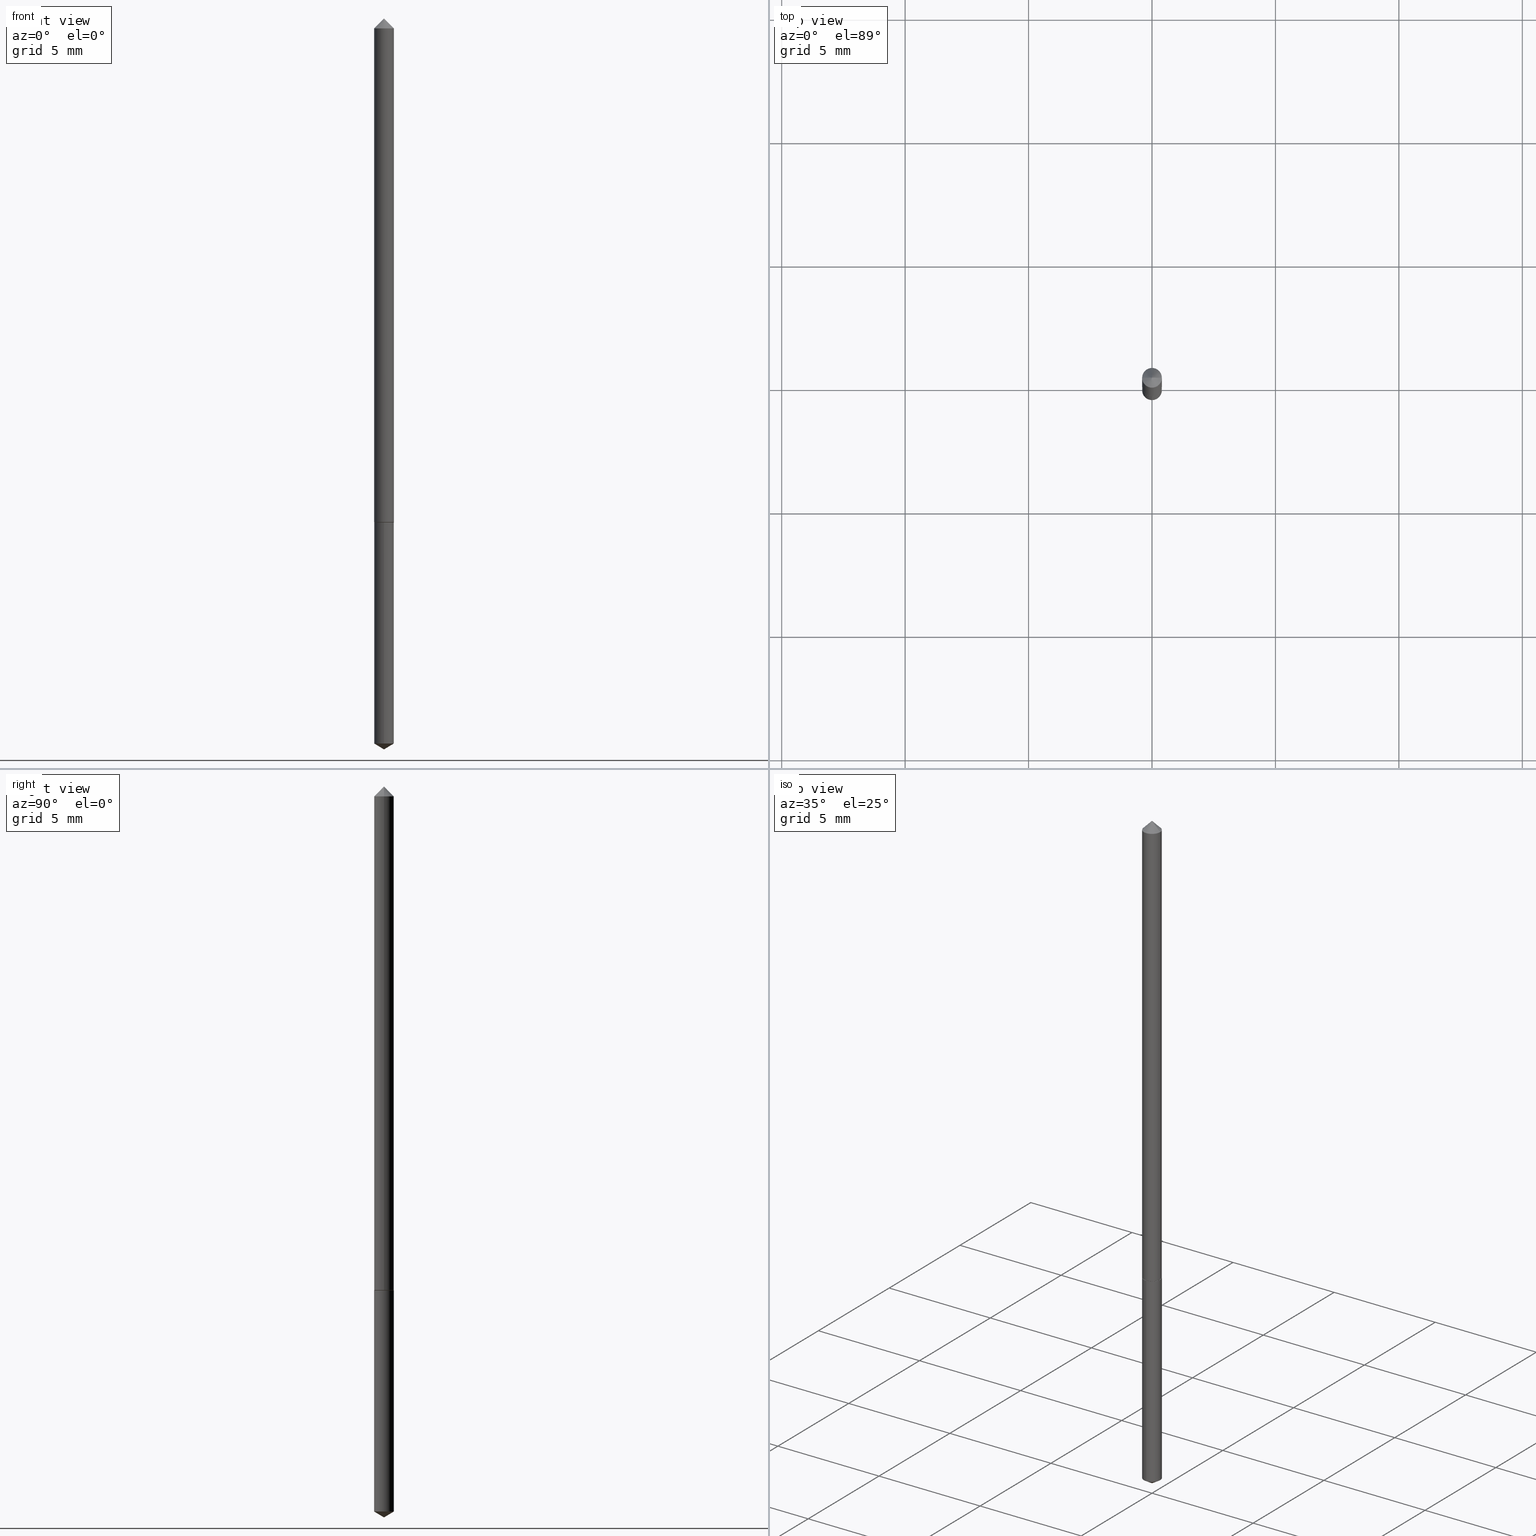
[diagram: canonical four-view strip — front | top / right | iso, engineering-drawing reading convention]
A machine part, canonical four-view strip (front | top / right | iso — engineering-drawing reading convention). The complete STEP part file that produces these views, byte-faithful:
ISO-10303-21;
HEADER;
FILE_DESCRIPTION (( 'STEP AP203' ),
    '1' );
FILE_NAME ('61003.STEP',
    '2024-04-23T02:09:39',
    ( '' ),
    ( '' ),
    'SwSTEP 2.0',
    'SolidWorks 2023',
    '' );
FILE_SCHEMA (( 'CONFIG_CONTROL_DESIGN' ));
ENDSEC;

DATA;
#1 = DIRECTION ( 'NONE',  ( -2.445468806185136597E-29, 3.491481338843145583E-15, 1.000000000000000000 ) ) ;
#2 = VECTOR ( 'NONE', #111, 39.37007874015748143 ) ;
#3 = APPROVAL_STATUS ( 'not_yet_approved' ) ;
#4 = DIRECTION ( 'NONE',  ( 1.000000000000000000, -6.982962677686256455E-15, 0.000000000000000000 ) ) ;
#5 =( NAMED_UNIT ( * ) SI_UNIT ( $, .STERADIAN. ) SOLID_ANGLE_UNIT ( ) );
#6 = CLOSED_SHELL ( 'NONE', ( #240, #54, #122, #280, #63, #265, #103 ) ) ;
#7 = MECHANICAL_CONTEXT ( 'NONE', #248, 'mechanical' ) ;
#8 = LOCAL_TIME ( 22, 9, 39.00000000000000000, #77 ) ;
#9 = DIRECTION ( 'NONE',  ( -6.982962677686265922E-15, -1.000000000000000000, 0.000000000000000000 ) ) ;
#10 = FACE_OUTER_BOUND ( 'NONE', #301, .T. ) ;
#11 = ORIENTED_EDGE ( 'NONE', *, *, #190, .F. ) ;
#12 = DIRECTION ( 'NONE',  ( 1.000000000000000000, -6.982962677686273810E-15, 0.000000000000000000 ) ) ;
#13 = LINE ( 'NONE', #140, #227 ) ;
#14 = EDGE_LOOP ( 'NONE', ( #325, #134 ) ) ;
#15 = CARTESIAN_POINT ( 'NONE',  ( 0.01575000000000000358, -2.190904540124077205E-16, -0.03125000000000019429 ) ) ;
#16 = ORIENTED_EDGE ( 'NONE', *, *, #125, .T. ) ;
#17 = DIRECTION ( 'NONE',  ( -1.000000000000000000, 6.982962677686266711E-15, 0.000000000000000000 ) ) ;
#18 = ORIENTED_EDGE ( 'NONE', *, *, #133, .T. ) ;
#19 = AXIS2_PLACEMENT_3D ( 'NONE', #334, #286, #91 ) ;
#20 = EDGE_CURVE ( 'NONE', #229, #84, #152, .T. ) ;
#21 = CARTESIAN_POINT ( 'NONE',  ( 3.864993808106007472E-31, -5.305083262954399380E-17, -0.01550000000000009703 ) ) ;
#22 = FACE_OUTER_BOUND ( 'NONE', #313, .T. ) ;
#23 = ORIENTED_EDGE ( 'NONE', *, *, #113, .T. ) ;
#24 = ADVANCED_FACE ( 'NONE', ( #279 ), #196, .T. ) ;
#25 = ORIENTED_EDGE ( 'NONE', *, *, #311, .T. ) ;
#26 = AXIS2_PLACEMENT_3D ( 'NONE', #230, #28, #256 ) ;
#27 = CIRCLE ( 'NONE', #288, 0.01575000000000000358 ) ;
#28 = DIRECTION ( 'NONE',  ( -2.445331127242013945E-29, 3.491678502925895988E-15, 1.000000000000000000 ) ) ;
#29 = FACE_OUTER_BOUND ( 'NONE', #357, .T. ) ;
#30 = PERSON_AND_ORGANIZATION ( #41, #171 ) ;
#31 = CC_DESIGN_PERSON_AND_ORGANIZATION_ASSIGNMENT ( #219, #161, ( #123 ) ) ;
#32 = VECTOR ( 'NONE', #277, 39.37007874015748143 ) ;
#33 = CARTESIAN_POINT ( 'NONE',  ( 2.888180594385542696E-29, -4.124021479805775382E-15, -1.181100000000000039 ) ) ;
#34 = DIRECTION ( 'NONE',  ( 0.000000000000000000, 0.000000000000000000, 1.000000000000000000 ) ) ;
#35 = DIRECTION ( 'NONE',  ( 1.000000000000000000, -6.982962677686267499E-15, 0.000000000000000000 ) ) ;
#36 = PRODUCT ( '61003', '61003', '', ( #7 ) ) ;
#37 = DIRECTION ( 'NONE',  ( -2.445331127242013945E-29, 3.491678502925895988E-15, 1.000000000000000000 ) ) ;
#38 = APPROVAL_DATE_TIME ( #101, #321 ) ;
#39 = CIRCLE ( 'NONE', #168, 0.01575000000000000011 ) ;
#40 = AXIS2_PLACEMENT_3D ( 'NONE', #72, #166, #293 ) ;
#41 = PERSON ( 'UNSPECIFIED', 'UNSPECIFIED', 'UNSPECIFIED', ('UNSPECIFIED'), ('UNSPECIFIED'), ('UNSPECIFIED') ) ;
#42 = APPROVAL_DATE_TIME ( #108, #287 ) ;
#43 = DIRECTION ( 'NONE',  ( 0.7071067811865453523, -7.319954787623248157E-15, -0.7071067811865496822 ) ) ;
#44 = ORIENTED_EDGE ( 'NONE', *, *, #342, .T. ) ;
#45 = DIRECTION ( 'NONE',  ( 2.445468806185136597E-29, -3.491481338843145583E-15, -1.000000000000000000 ) ) ;
#46 = CARTESIAN_POINT ( 'NONE',  ( -0.01575000000000000358, -1.371358078891821821E-15, -0.03125000000000019429 ) ) ;
#47 = ORIENTED_EDGE ( 'NONE', *, *, #311, .F. ) ;
#48 = DIRECTION ( 'NONE',  ( -6.982962677686265922E-15, -1.000000000000000000, 0.000000000000000000 ) ) ;
#49 = PERSON_AND_ORGANIZATION ( #41, #171 ) ;
#50 = ORIENTED_EDGE ( 'NONE', *, *, #295, .F. ) ;
#51 = AXIS2_PLACEMENT_3D ( 'NONE', #150, #255, #208 ) ;
#52 = APPROVAL_STATUS ( 'not_yet_approved' ) ;
#53 = EDGE_CURVE ( 'NONE', #350, #75, #114, .T. ) ;
#54 = ADVANCED_FACE ( 'NONE', ( #257 ), #361, .T. ) ;
#55 = DIRECTION ( 'NONE',  ( -2.445331127242013945E-29, 3.491678502925895988E-15, 1.000000000000000000 ) ) ;
#56 = CARTESIAN_POINT ( 'NONE',  ( -1.099816621735386641E-16, -0.01575000000000285894, -0.8189000000000000723 ) ) ;
#57 = MANIFOLD_SOLID_BREP ( 'Body-Move/Copy2[1]', #204 ) ;
#58 = EDGE_CURVE ( 'NONE', #229, #223, #39, .T. ) ;
#59 = ORIENTED_EDGE ( 'NONE', *, *, #295, .T. ) ;
#60 = EDGE_CURVE ( 'NONE', #276, #229, #124, .T. ) ;
#61 = VERTEX_POINT ( 'NONE', #210 ) ;
#62 = AXIS2_PLACEMENT_3D ( 'NONE', #146, #253, #201 ) ;
#63 = ADVANCED_FACE ( 'NONE', ( #172 ), #216, .T. ) ;
#64 = DIRECTION ( 'NONE',  ( 6.090539988449815512E-15, 0.8571673007021189949, 0.5150380749100429423 ) ) ;
#65 = DATE_AND_TIME ( #128, #207 ) ;
#66 = CARTESIAN_POINT ( 'NONE',  ( 2.002594405385008597E-29, -2.859174068378652141E-15, -0.8189000000000000723 ) ) ;
#67 = CARTESIAN_POINT ( 'NONE',  ( 0.01525000000000006212, -2.965664249213367803E-15, -0.8189000000000000723 ) ) ;
#68 = APPLICATION_PROTOCOL_DEFINITION ( 'international standard', 'config_control_design', 1994, #79 ) ;
#69 = DIRECTION ( 'NONE',  ( 2.445331127242013665E-29, -3.491678502925895988E-15, -1.000000000000000000 ) ) ;
#70 = DIRECTION ( 'NONE',  ( -2.445468806185136877E-29, 3.491481338843145188E-15, 1.000000000000000000 ) ) ;
#71 = PERSON_AND_ORGANIZATION ( #41, #171 ) ;
#72 = CARTESIAN_POINT ( 'NONE',  ( -9.338458568560408238E-28, 1.333437975733693061E-13, 38.18897874015748073 ) ) ;
#73 = AXIS2_PLACEMENT_3D ( 'NONE', #158, #37, #314 ) ;
#74 = FACE_OUTER_BOUND ( 'NONE', #144, .T. ) ;
#75 = VERTEX_POINT ( 'NONE', #206 ) ;
#76 = CARTESIAN_POINT ( 'NONE',  ( 2.002594405385008597E-29, -2.859174068378652141E-15, -0.8189000000000000723 ) ) ;
#77 = COORDINATED_UNIVERSAL_TIME_OFFSET ( 5, 0, .BEHIND. ) ;
#78 = CC_DESIGN_PERSON_AND_ORGANIZATION_ASSIGNMENT ( #71, #289, ( #36 ) ) ;
#79 = APPLICATION_CONTEXT ( 'configuration controlled 3d designs of mechanical parts and assemblies' ) ;
#80 = CARTESIAN_POINT ( 'NONE',  ( -0.01575000000000000358, 8.728703347097452934E-19, -0.03125000000000019429 ) ) ;
#81 = ORIENTED_EDGE ( 'NONE', *, *, #20, .T. ) ;
#82 =( NAMED_UNIT ( * ) PLANE_ANGLE_UNIT ( ) SI_UNIT ( $, .RADIAN. ) );
#83 = CALENDAR_DATE ( 2024, 22, 4 ) ;
#84 = VERTEX_POINT ( 'NONE', #254 ) ;
#85 = APPROVAL_PERSON_ORGANIZATION ( #130, #321, #341 ) ;
#86 = COORDINATED_UNIVERSAL_TIME_OFFSET ( 5, 0, .BEHIND. ) ;
#87 = DIRECTION ( 'NONE',  ( -2.445468806185136597E-29, 3.491481338843145583E-15, 1.000000000000000000 ) ) ;
#88 = DIRECTION ( 'NONE',  ( 1.000000000000000000, -6.982962677686256455E-15, 0.000000000000000000 ) ) ;
#89 = CARTESIAN_POINT ( 'NONE',  ( 0.000000000000000000, 0.000000000000000000, 0.000000000000000000 ) ) ;
#90 = VECTOR ( 'NONE', #70, 39.37007874015748143 ) ;
#91 = DIRECTION ( 'NONE',  ( -6.982962677686265922E-15, -1.000000000000000000, 0.000000000000000000 ) ) ;
#92 = CARTESIAN_POINT ( 'NONE',  ( 2.888180594385542696E-29, -4.124021479805775382E-15, -1.181100000000000039 ) ) ;
#93 = PLANE ( 'NONE',  #347 ) ;
#94 = ORIENTED_EDGE ( 'NONE', *, *, #190, .T. ) ;
#95 = CYLINDRICAL_SURFACE ( 'NONE', #19, 0.01575000000000000011 ) ;
#96 = CC_DESIGN_APPROVAL ( #246, ( #145 ) ) ;
#97 = DIRECTION ( 'NONE',  ( 0.7071067811865474617, -2.468850131082256666E-15, 0.7071067811865474617 ) ) ;
#98 = PRODUCT_RELATED_PRODUCT_CATEGORY ( 'detail', '', ( #36 ) ) ;
#99 = LINE ( 'NONE', #214, #197 ) ;
#100 = CARTESIAN_POINT ( 'NONE',  ( 0.01575000000000005215, -1.099816621735590636E-16, 7.679978421878623957E-31 ) ) ;
#101 = DATE_AND_TIME ( #291, #139 ) ;
#102 = CARTESIAN_POINT ( 'NONE',  ( 7.642090019328599159E-31, -1.091087918388489774E-16, -0.03125000000000019429 ) ) ;
#103 = ADVANCED_FACE ( 'NONE', ( #22 ), #362, .T. ) ;
#104 = PERSON_AND_ORGANIZATION_ROLE ( 'creator' ) ;
#105 = LENGTH_MEASURE_WITH_UNIT ( LENGTH_MEASURE( 0.02539999999999999897 ), #263 );
#106 = AXIS2_PLACEMENT_3D ( 'NONE', #66, #262, #4 ) ;
#107 = SHAPE_DEFINITION_REPRESENTATION ( #182, #236 ) ;
#108 = DATE_AND_TIME ( #273, #285 ) ;
#109 = DIRECTION ( 'NONE',  ( -2.445468806185136597E-29, 3.491481338843145583E-15, 1.000000000000000000 ) ) ;
#110 = ORIENTED_EDGE ( 'NONE', *, *, #184, .T. ) ;
#111 = DIRECTION ( 'NONE',  ( -0.7071067811865453523, 2.468850131082234184E-15, -0.7071067811865496822 ) ) ;
#112 = ORIENTED_EDGE ( 'NONE', *, *, #275, .F. ) ;
#113 = EDGE_CURVE ( 'NONE', #61, #170, #283, .T. ) ;
#114 = CIRCLE ( 'NONE', #338, 0.01525000000000006212 ) ;
#115 = AXIS2_PLACEMENT_3D ( 'NONE', #203, #45, #17 ) ;
#116 = ORIENTED_EDGE ( 'NONE', *, *, #173, .F. ) ;
#117 = EDGE_LOOP ( 'NONE', ( #221, #25, #141 ) ) ;
#118 = DIMENSIONAL_EXPONENTS ( 1.000000000000000000, 0.000000000000000000, 0.000000000000000000, 0.000000000000000000, 0.000000000000000000, 0.000000000000000000, 0.000000000000000000 ) ;
#119 = ORIENTED_EDGE ( 'NONE', *, *, #20, .F. ) ;
#120 = DIRECTION ( 'NONE',  ( 1.000000000000000000, -6.982962677686266711E-15, 4.876176775795935793E-29 ) ) ;
#121 = VECTOR ( 'NONE', #300, 39.37007874015748143 ) ;
#122 = ADVANCED_FACE ( 'NONE', ( #356 ), #331, .T. ) ;
#123 = PRODUCT_DEFINITION_FORMATION_WITH_SPECIFIED_SOURCE ( 'ANY', '', #36, .NOT_KNOWN. ) ;
#124 = LINE ( 'NONE', #92, #153 ) ;
#125 = EDGE_CURVE ( 'NONE', #247, #84, #191, .T. ) ;
#126 = CC_DESIGN_PERSON_AND_ORGANIZATION_ASSIGNMENT ( #307, #104, ( #145 ) ) ;
#127 = CARTESIAN_POINT ( 'NONE',  ( 2.001371670981915796E-29, -2.857428327709230637E-15, -0.8184000000000001274 ) ) ;
#128 = CALENDAR_DATE ( 2024, 22, 4 ) ;
#129 = COORDINATED_UNIVERSAL_TIME_OFFSET ( 5, 0, .BEHIND. ) ;
#130 = PERSON_AND_ORGANIZATION ( #41, #171 ) ;
#131 = CONICAL_SURFACE ( 'NONE', #115, 0.01575000000000000358, 0.7853981633974452814 ) ;
#132 = DATE_AND_TIME ( #157, #163 ) ;
#133 = EDGE_CURVE ( 'NONE', #223, #247, #249, .T. ) ;
#134 = ORIENTED_EDGE ( 'NONE', *, *, #200, .F. ) ;
#135 = DIRECTION ( 'NONE',  ( -2.445468806185136597E-29, 3.491481338843145583E-15, 1.000000000000000000 ) ) ;
#136 = ORIENTED_EDGE ( 'NONE', *, *, #133, .F. ) ;
#137 = CARTESIAN_POINT ( 'NONE',  ( -0.01575000000000009726, -2.745517846827014167E-15, -0.8184000000000001274 ) ) ;
#138 = CIRCLE ( 'NONE', #212, 0.01575000000000000358 ) ;
#139 = LOCAL_TIME ( 22, 9, 39.00000000000000000, #129 ) ;
#140 = CARTESIAN_POINT ( 'NONE',  ( 0.01575000000000000358, -2.171616353037506096E-16, -0.03125000000000019429 ) ) ;
#141 = ORIENTED_EDGE ( 'NONE', *, *, #58, .F. ) ;
#142 = CARTESIAN_POINT ( 'NONE',  ( -1.099816621735300853E-16, -0.01575000000000409753, -1.171636445250316072 ) ) ;
#143 = ORIENTED_EDGE ( 'NONE', *, *, #337, .F. ) ;
#144 = EDGE_LOOP ( 'NONE', ( #296, #16 ) ) ;
#145 = PRODUCT_DEFINITION ( 'UNKNOWN', '', #123, #185 ) ;
#146 = CARTESIAN_POINT ( 'NONE',  ( 2.002594405385008597E-29, -2.859174068378652141E-15, -0.8189000000000000723 ) ) ;
#147 = DIRECTION ( 'NONE',  ( -5.985567269335977567E-15, -0.8571673007021154422, 0.5150380749100489375 ) ) ;
#148 = CC_DESIGN_APPROVAL ( #321, ( #123 ) ) ;
#149 = DIRECTION ( 'NONE',  ( -2.445468806185136597E-29, 3.491481338843145583E-15, 1.000000000000000000 ) ) ;
#150 = CARTESIAN_POINT ( 'NONE',  ( 7.642090019328599159E-31, -1.091087918388489774E-16, -0.03125000000000019429 ) ) ;
#151 = VERTEX_POINT ( 'NONE', #21 ) ;
#152 = LINE ( 'NONE', #56, #121 ) ;
#153 = VECTOR ( 'NONE', #147, 39.37007874015748143 ) ;
#154 = DIRECTION ( 'NONE',  ( -2.445468806185136597E-29, 3.491481338843145583E-15, 1.000000000000000000 ) ) ;
#155 = LINE ( 'NONE', #100, #90 ) ;
#156 = AXIS2_PLACEMENT_3D ( 'NONE', #159, #69, #164 ) ;
#157 = CALENDAR_DATE ( 2024, 22, 4 ) ;
#158 = CARTESIAN_POINT ( 'NONE',  ( 2.002594405385008597E-29, -2.859174068378652141E-15, -0.8189000000000000723 ) ) ;
#159 = CARTESIAN_POINT ( 'NONE',  ( 2.002594405385008597E-29, -2.859174068378652141E-15, -0.8189000000000000723 ) ) ;
#160 = CARTESIAN_POINT ( 'NONE',  ( 7.642090019328599159E-31, -1.091087918388489774E-16, -0.03125000000000019429 ) ) ;
#161 = PERSON_AND_ORGANIZATION_ROLE ( 'creator' ) ;
#162 = CIRCLE ( 'NONE', #305, 0.01575000000000009726 ) ;
#163 = LOCAL_TIME ( 22, 9, 39.00000000000000000, #336 ) ;
#164 = DIRECTION ( 'NONE',  ( 6.982962677686265922E-15, 1.000000000000000000, -3.491678502925895988E-15 ) ) ;
#165 = ORIENTED_EDGE ( 'NONE', *, *, #359, .F. ) ;
#166 = DIRECTION ( 'NONE',  ( -2.445331127242013945E-29, 3.491678502925895988E-15, 1.000000000000000000 ) ) ;
#167 = ORIENTED_EDGE ( 'NONE', *, *, #340, .T. ) ;
#168 = AXIS2_PLACEMENT_3D ( 'NONE', #232, #55, #328 ) ;
#169 = ADVANCED_FACE ( 'NONE', ( #272 ), #351, .T. ) ;
#170 = VERTEX_POINT ( 'NONE', #137 ) ;
#171 = ORGANIZATION ( 'UNSPECIFIED', 'UNSPECIFIED', '' ) ;
#172 = FACE_OUTER_BOUND ( 'NONE', #268, .T. ) ;
#173 = EDGE_CURVE ( 'NONE', #151, #250, #316, .T. ) ;
#174 = ORIENTED_EDGE ( 'NONE', *, *, #258, .F. ) ;
#175 = VERTEX_POINT ( 'NONE', #15 ) ;
#176 = EDGE_CURVE ( 'NONE', #170, #250, #297, .T. ) ;
#177 = DIRECTION ( 'NONE',  ( -2.445468806185136597E-29, 3.491481338843145583E-15, 1.000000000000000000 ) ) ;
#178 = AXIS2_PLACEMENT_3D ( 'NONE', #302, #87, #317 ) ;
#179 = SECURITY_CLASSIFICATION ( '', '', #274 ) ;
#180 = DATE_TIME_ROLE ( 'creation_date' ) ;
#181 = CARTESIAN_POINT ( 'NONE',  ( 1.119104808822444749E-16, 0.01574999999999714129, -0.8189000000000000723 ) ) ;
#182 = PRODUCT_DEFINITION_SHAPE ( 'NONE', 'NONE',  #145 ) ;
#183 = VECTOR ( 'NONE', #358, 39.37007874015748143 ) ;
#184 = EDGE_CURVE ( 'NONE', #223, #229, #244, .T. ) ;
#185 = DESIGN_CONTEXT ( 'detailed design', #79, 'design' ) ;
#186 = APPROVAL_DATE_TIME ( #132, #246 ) ;
#187 = MANIFOLD_SOLID_BREP ( 'Body-Move/Copy2[2]', #6 ) ;
#188 = DIRECTION ( 'NONE',  ( -2.445468806185136597E-29, 3.491481338843145583E-15, 1.000000000000000000 ) ) ;
#189 = PLANE ( 'NONE',  #156 ) ;
#190 = EDGE_CURVE ( 'NONE', #75, #170, #99, .T. ) ;
#191 = CIRCLE ( 'NONE', #62, 0.01575000000000000011 ) ;
#192 = ORIENTED_EDGE ( 'NONE', *, *, #342, .F. ) ;
#193 = DIRECTION ( 'NONE',  ( -2.445331127242013945E-29, 3.491678502925895988E-15, 1.000000000000000000 ) ) ;
#194 = ORIENTED_EDGE ( 'NONE', *, *, #275, .T. ) ;
#195 = AXIS2_PLACEMENT_3D ( 'NONE', #89, #177, #120 ) ;
#196 = CONICAL_SURFACE ( 'NONE', #26, 65.52281426576983847, 1.029744258676664082 ) ;
#197 = VECTOR ( 'NONE', #308, 39.37007874015748854 ) ;
#198 = APPROVAL_ROLE ( '' ) ;
#199 = EDGE_LOOP ( 'NONE', ( #224, #94, #202, #50 ) ) ;
#200 = EDGE_CURVE ( 'NONE', #75, #350, #319, .T. ) ;
#201 = DIRECTION ( 'NONE',  ( -6.982962677686265922E-15, -1.000000000000000000, 0.000000000000000000 ) ) ;
#202 = ORIENTED_EDGE ( 'NONE', *, *, #113, .F. ) ;
#203 = CARTESIAN_POINT ( 'NONE',  ( 7.642090019328599159E-31, -1.091087918388489774E-16, -0.03125000000000019429 ) ) ;
#204 = CLOSED_SHELL ( 'NONE', ( #169, #352, #24, #269, #251 ) ) ;
#205 = VECTOR ( 'NONE', #97, 39.37007874015748854 ) ;
#206 = CARTESIAN_POINT ( 'NONE',  ( -0.01525000000000006212, -2.748167074001125762E-15, -0.8189000000000000723 ) ) ;
#207 = LOCAL_TIME ( 22, 9, 39.00000000000000000, #335 ) ;
#208 = DIRECTION ( 'NONE',  ( -1.000000000000000000, 6.982962677686266711E-15, 0.000000000000000000 ) ) ;
#209 = CARTESIAN_POINT ( 'NONE',  ( 2.002594405385008597E-29, -2.859174068378652141E-15, -0.8189000000000000723 ) ) ;
#210 = CARTESIAN_POINT ( 'NONE',  ( 0.01575000000000009726, -2.967409989882790095E-15, -0.8184000000000001274 ) ) ;
#211 = CC_DESIGN_DATE_AND_TIME_ASSIGNMENT ( #322, #349, ( #179 ) ) ;
#212 = AXIS2_PLACEMENT_3D ( 'NONE', #160, #135, #220 ) ;
#213 = LINE ( 'NONE', #306, #354 ) ;
#214 = CARTESIAN_POINT ( 'NONE',  ( -0.01575000000000009726, -2.745517846827014167E-15, -0.8184000000000001274 ) ) ;
#215 = PERSON_AND_ORGANIZATION ( #41, #171 ) ;
#216 = CONICAL_SURFACE ( 'NONE', #339, 0.01575000000000009726, 0.7853981633974482790 ) ;
#217 = DIRECTION ( 'NONE',  ( 1.000000000000000000, 0.000000000000000000, 0.000000000000000000 ) ) ;
#218 = FACE_OUTER_BOUND ( 'NONE', #281, .T. ) ;
#219 = PERSON_AND_ORGANIZATION ( #41, #171 ) ;
#220 = DIRECTION ( 'NONE',  ( 1.000000000000000000, -6.982962677686267499E-15, 0.000000000000000000 ) ) ;
#221 = ORIENTED_EDGE ( 'NONE', *, *, #60, .F. ) ;
#222 = FACE_OUTER_BOUND ( 'NONE', #117, .T. ) ;
#223 = VERTEX_POINT ( 'NONE', #245 ) ;
#224 = ORIENTED_EDGE ( 'NONE', *, *, #53, .T. ) ;
#225 = CC_DESIGN_PERSON_AND_ORGANIZATION_ASSIGNMENT ( #215, #309, ( #123 ) ) ;
#226 = ORIENTED_EDGE ( 'NONE', *, *, #184, .F. ) ;
#227 = VECTOR ( 'NONE', #43, 39.37007874015748143 ) ;
#228 = EDGE_LOOP ( 'NONE', ( #47, #323, #226 ) ) ;
#229 = VERTEX_POINT ( 'NONE', #142 ) ;
#230 = CARTESIAN_POINT ( 'NONE',  ( -9.338458568560408238E-28, 1.333437975733693061E-13, 38.18897874015748073 ) ) ;
#231 = AXIS2_PLACEMENT_3D ( 'NONE', #333, #34, #217 ) ;
#232 = CARTESIAN_POINT ( 'NONE',  ( 2.865151814668304796E-29, -4.090816331457678036E-15, -1.171636445250316072 ) ) ;
#233 = CARTESIAN_POINT ( 'NONE',  ( -0.01575000000000005215, 1.119104808822161498E-16, -7.747322767151501157E-31 ) ) ;
#234 = DIRECTION ( 'NONE',  ( -2.445468806185136597E-29, 3.491481338843145583E-15, 1.000000000000000000 ) ) ;
#235 = CC_DESIGN_PERSON_AND_ORGANIZATION_ASSIGNMENT ( #49, #343, ( #179 ) ) ;
#236 = ADVANCED_BREP_SHAPE_REPRESENTATION ( '61003', ( #57, #187, #231 ), #310 ) ;
#237 = CARTESIAN_POINT ( 'NONE',  ( 0.01575000000000009726, -2.967409989882790095E-15, -0.8184000000000001274 ) ) ;
#238 = CONICAL_SURFACE ( 'NONE', #40, 65.52281426576983847, 1.029744258676664082 ) ;
#239 = CC_DESIGN_SECURITY_CLASSIFICATION ( #179, ( #123 ) ) ;
#240 = ADVANCED_FACE ( 'NONE', ( #218 ), #131, .T. ) ;
#241 = APPLICATION_PROTOCOL_DEFINITION ( 'international standard', 'config_control_design', 1994, #248 ) ;
#242 = ORIENTED_EDGE ( 'NONE', *, *, #58, .T. ) ;
#243 = ORIENTED_EDGE ( 'NONE', *, *, #176, .T. ) ;
#244 = CIRCLE ( 'NONE', #292, 0.01575000000000000011 ) ;
#245 = CARTESIAN_POINT ( 'NONE',  ( 1.119104808822444502E-16, 0.01574999999999591310, -1.171636445250316072 ) ) ;
#246 = APPROVAL ( #264, 'UNSPECIFIED' ) ;
#247 = VERTEX_POINT ( 'NONE', #181 ) ;
#248 = APPLICATION_CONTEXT ( 'configuration controlled 3d designs of mechanical parts and assemblies' ) ;
#249 = LINE ( 'NONE', #299, #32 ) ;
#250 = VERTEX_POINT ( 'NONE', #46 ) ;
#251 = ADVANCED_FACE ( 'NONE', ( #74 ), #189, .F. ) ;
#252 = CIRCLE ( 'NONE', #73, 0.01575000000000000011 ) ;
#253 = DIRECTION ( 'NONE',  ( -2.445331127242013945E-29, 3.491678502925895988E-15, 1.000000000000000000 ) ) ;
#254 = CARTESIAN_POINT ( 'NONE',  ( -1.099816621735386641E-16, -0.01575000000000285894, -0.8189000000000000723 ) ) ;
#255 = DIRECTION ( 'NONE',  ( 2.445468806185136597E-29, -3.491481338843145583E-15, -1.000000000000000000 ) ) ;
#256 = DIRECTION ( 'NONE',  ( -6.982962677686268288E-15, -1.000000000000000000, 3.468864327941519667E-15 ) ) ;
#257 = FACE_OUTER_BOUND ( 'NONE', #318, .T. ) ;
#258 = EDGE_CURVE ( 'NONE', #151, #175, #13, .T. ) ;
#259 = DIRECTION ( 'NONE',  ( 1.000000000000000000, -6.982962677686265922E-15, 4.876176775795935793E-29 ) ) ;
#260 = APPROVAL_ROLE ( '' ) ;
#261 = AXIS2_PLACEMENT_3D ( 'NONE', #76, #193, #48 ) ;
#262 = DIRECTION ( 'NONE',  ( -2.445468806185136597E-29, 3.491481338843145583E-15, 1.000000000000000000 ) ) ;
#263 =( LENGTH_UNIT ( ) NAMED_UNIT ( * ) SI_UNIT ( $, .METRE. ) );
#264 = APPROVAL_STATUS ( 'not_yet_approved' ) ;
#265 = ADVANCED_FACE ( 'NONE', ( #10 ), #344, .T. ) ;
#266 = AXIS2_PLACEMENT_3D ( 'NONE', #270, #149, #12 ) ;
#267 =( CONVERSION_BASED_UNIT ( 'INCH', #105 ) LENGTH_UNIT ( ) NAMED_UNIT ( #118 ) );
#268 = EDGE_LOOP ( 'NONE', ( #11, #345, #59, #112 ) ) ;
#269 = ADVANCED_FACE ( 'NONE', ( #29 ), #95, .T. ) ;
#270 = CARTESIAN_POINT ( 'NONE',  ( 2.001371670981915796E-29, -2.857428327709230637E-15, -0.8184000000000001274 ) ) ;
#271 = APPROVAL_PERSON_ORGANIZATION ( #30, #246, #260 ) ;
#272 = FACE_OUTER_BOUND ( 'NONE', #346, .T. ) ;
#273 = CALENDAR_DATE ( 2024, 22, 4 ) ;
#274 = SECURITY_CLASSIFICATION_LEVEL ( 'unclassified' ) ;
#275 = EDGE_CURVE ( 'NONE', #170, #61, #162, .T. ) ;
#276 = VERTEX_POINT ( 'NONE', #33 ) ;
#277 = DIRECTION ( 'NONE',  ( -2.445331127242013945E-29, 3.491678502925895988E-15, 1.000000000000000000 ) ) ;
#278 = CARTESIAN_POINT ( 'NONE',  ( 2.001371670981915796E-29, -2.857428327709230637E-15, -0.8184000000000001274 ) ) ;
#279 = FACE_OUTER_BOUND ( 'NONE', #228, .T. ) ;
#280 = ADVANCED_FACE ( 'NONE', ( #332 ), #93, .F. ) ;
#281 = EDGE_LOOP ( 'NONE', ( #116, #353, #167 ) ) ;
#282 = DIRECTION ( 'NONE',  ( -2.445331127242013945E-29, 3.491678502925895988E-15, 1.000000000000000000 ) ) ;
#283 = CIRCLE ( 'NONE', #178, 0.01575000000000009726 ) ;
#284 = ORIENTED_EDGE ( 'NONE', *, *, #125, .F. ) ;
#285 = LOCAL_TIME ( 22, 9, 39.00000000000000000, #86 ) ;
#286 = DIRECTION ( 'NONE',  ( -2.445331127242013945E-29, 3.491678502925895988E-15, 1.000000000000000000 ) ) ;
#287 = APPROVAL ( #52, 'UNSPECIFIED' ) ;
#288 = AXIS2_PLACEMENT_3D ( 'NONE', #102, #188, #35 ) ;
#289 = PERSON_AND_ORGANIZATION_ROLE ( 'design_owner' ) ;
#290 = CC_DESIGN_DATE_AND_TIME_ASSIGNMENT ( #65, #180, ( #145 ) ) ;
#291 = CALENDAR_DATE ( 2024, 22, 4 ) ;
#292 = AXIS2_PLACEMENT_3D ( 'NONE', #327, #282, #9 ) ;
#293 = DIRECTION ( 'NONE',  ( -6.982962677686268288E-15, -1.000000000000000000, 3.468864327941519667E-15 ) ) ;
#294 = DIRECTION ( 'NONE',  ( 1.000000000000000000, -6.982962677686266711E-15, 4.876176775795935793E-29 ) ) ;
#295 = EDGE_CURVE ( 'NONE', #350, #61, #364, .T. ) ;
#296 = ORIENTED_EDGE ( 'NONE', *, *, #359, .T. ) ;
#297 = LINE ( 'NONE', #233, #183 ) ;
#298 = ORIENTED_EDGE ( 'NONE', *, *, #176, .F. ) ;
#299 = CARTESIAN_POINT ( 'NONE',  ( 1.119104808822357974E-16, 0.01574999999999714129, -0.8189000000000000723 ) ) ;
#300 = DIRECTION ( 'NONE',  ( -2.445331127242013945E-29, 3.491678502925895988E-15, 1.000000000000000000 ) ) ;
#301 = EDGE_LOOP ( 'NONE', ( #298, #194, #360, #192 ) ) ;
#302 = CARTESIAN_POINT ( 'NONE',  ( 2.001371670981915796E-29, -2.857428327709230637E-15, -0.8184000000000001274 ) ) ;
#303 = DIRECTION ( 'NONE',  ( -2.438088387897960049E-29, 3.491481338843145188E-15, 1.000000000000000000 ) ) ;
#304 = DIRECTION ( 'NONE',  ( 1.000000000000000000, -6.982962677686273810E-15, 0.000000000000000000 ) ) ;
#305 = AXIS2_PLACEMENT_3D ( 'NONE', #127, #1, #329 ) ;
#306 = CARTESIAN_POINT ( 'NONE',  ( 2.888408062244744403E-29, -4.123698564471047262E-15, -1.181100000000000039 ) ) ;
#307 = PERSON_AND_ORGANIZATION ( #41, #171 ) ;
#308 = DIRECTION ( 'NONE',  ( -0.7071067811865474617, 7.493145998870352582E-15, 0.7071067811865474617 ) ) ;
#309 = PERSON_AND_ORGANIZATION_ROLE ( 'design_supplier' ) ;
#310 =( GEOMETRIC_REPRESENTATION_CONTEXT ( 3 ) GLOBAL_UNCERTAINTY_ASSIGNED_CONTEXT ( ( #348 ) ) GLOBAL_UNIT_ASSIGNED_CONTEXT ( ( #267, #82, #5 ) ) REPRESENTATION_CONTEXT ( 'NONE', 'WORKASPACE' ) );
#311 = EDGE_CURVE ( 'NONE', #276, #223, #213, .T. ) ;
#312 = CARTESIAN_POINT ( 'NONE',  ( 0.000000000000000000, 0.000000000000000000, 0.000000000000000000 ) ) ;
#313 = EDGE_LOOP ( 'NONE', ( #174, #330, #44 ) ) ;
#314 = DIRECTION ( 'NONE',  ( -6.982962677686265922E-15, -1.000000000000000000, 0.000000000000000000 ) ) ;
#315 = PERSON_AND_ORGANIZATION ( #41, #171 ) ;
#316 = LINE ( 'NONE', #80, #2 ) ;
#317 = DIRECTION ( 'NONE',  ( 1.000000000000000000, -6.982962677686273810E-15, 0.000000000000000000 ) ) ;
#318 = EDGE_LOOP ( 'NONE', ( #23, #243, #324, #143 ) ) ;
#319 = CIRCLE ( 'NONE', #106, 0.01525000000000006212 ) ;
#320 = APPROVAL_PERSON_ORGANIZATION ( #315, #287, #198 ) ;
#321 = APPROVAL ( #3, 'UNSPECIFIED' ) ;
#322 = DATE_AND_TIME ( #83, #8 ) ;
#323 = ORIENTED_EDGE ( 'NONE', *, *, #60, .T. ) ;
#324 = ORIENTED_EDGE ( 'NONE', *, *, #340, .F. ) ;
#325 = ORIENTED_EDGE ( 'NONE', *, *, #53, .F. ) ;
#326 = AXIS2_PLACEMENT_3D ( 'NONE', #312, #109, #294 ) ;
#327 = CARTESIAN_POINT ( 'NONE',  ( 2.865151814668304796E-29, -4.090816331457678036E-15, -1.171636445250316072 ) ) ;
#328 = DIRECTION ( 'NONE',  ( -6.982962677686265922E-15, -1.000000000000000000, 0.000000000000000000 ) ) ;
#329 = DIRECTION ( 'NONE',  ( 1.000000000000000000, -6.982962677686273810E-15, 0.000000000000000000 ) ) ;
#330 = ORIENTED_EDGE ( 'NONE', *, *, #173, .T. ) ;
#331 = CONICAL_SURFACE ( 'NONE', #266, 0.01575000000000009726, 0.7853981633974482790 ) ;
#332 = FACE_OUTER_BOUND ( 'NONE', #14, .T. ) ;
#333 = CARTESIAN_POINT ( 'NONE',  ( 0.000000000000000000, 0.000000000000000000, 0.000000000000000000 ) ) ;
#334 = CARTESIAN_POINT ( 'NONE',  ( 2.002594405385008597E-29, -2.859174068378652141E-15, -0.8189000000000000723 ) ) ;
#335 = COORDINATED_UNIVERSAL_TIME_OFFSET ( 5, 0, .BEHIND. ) ;
#336 = COORDINATED_UNIVERSAL_TIME_OFFSET ( 5, 0, .BEHIND. ) ;
#337 = EDGE_CURVE ( 'NONE', #61, #175, #155, .T. ) ;
#338 = AXIS2_PLACEMENT_3D ( 'NONE', #363, #154, #88 ) ;
#339 = AXIS2_PLACEMENT_3D ( 'NONE', #278, #234, #304 ) ;
#340 = EDGE_CURVE ( 'NONE', #175, #250, #27, .T. ) ;
#341 = APPROVAL_ROLE ( '' ) ;
#342 = EDGE_CURVE ( 'NONE', #250, #175, #138, .T. ) ;
#343 = PERSON_AND_ORGANIZATION_ROLE ( 'classification_officer' ) ;
#344 = CYLINDRICAL_SURFACE ( 'NONE', #326, 0.01575000000000005215 ) ;
#345 = ORIENTED_EDGE ( 'NONE', *, *, #200, .T. ) ;
#346 = EDGE_LOOP ( 'NONE', ( #242, #18, #165, #119 ) ) ;
#347 = AXIS2_PLACEMENT_3D ( 'NONE', #209, #303, #259 ) ;
#348 = UNCERTAINTY_MEASURE_WITH_UNIT (LENGTH_MEASURE( 1.000000000000000082E-05 ), #267, 'distance_accuracy_value', 'NONE');
#349 = DATE_TIME_ROLE ( 'classification_date' ) ;
#350 = VERTEX_POINT ( 'NONE', #67 ) ;
#351 = CYLINDRICAL_SURFACE ( 'NONE', #261, 0.01575000000000000011 ) ;
#352 = ADVANCED_FACE ( 'NONE', ( #222 ), #238, .T. ) ;
#353 = ORIENTED_EDGE ( 'NONE', *, *, #258, .T. ) ;
#354 = VECTOR ( 'NONE', #64, 39.37007874015748143 ) ;
#355 = CC_DESIGN_APPROVAL ( #287, ( #179 ) ) ;
#356 = FACE_OUTER_BOUND ( 'NONE', #199, .T. ) ;
#357 = EDGE_LOOP ( 'NONE', ( #136, #110, #81, #284 ) ) ;
#358 = DIRECTION ( 'NONE',  ( -2.445468806185136877E-29, 3.491481338843145188E-15, 1.000000000000000000 ) ) ;
#359 = EDGE_CURVE ( 'NONE', #84, #247, #252, .T. ) ;
#360 = ORIENTED_EDGE ( 'NONE', *, *, #337, .T. ) ;
#361 = CYLINDRICAL_SURFACE ( 'NONE', #195, 0.01575000000000005215 ) ;
#362 = CONICAL_SURFACE ( 'NONE', #51, 0.01575000000000000358, 0.7853981633974452814 ) ;
#363 = CARTESIAN_POINT ( 'NONE',  ( 2.002594405385008597E-29, -2.859174068378652141E-15, -0.8189000000000000723 ) ) ;
#364 = LINE ( 'NONE', #237, #205 ) ;
ENDSEC;
END-ISO-10303-21;
